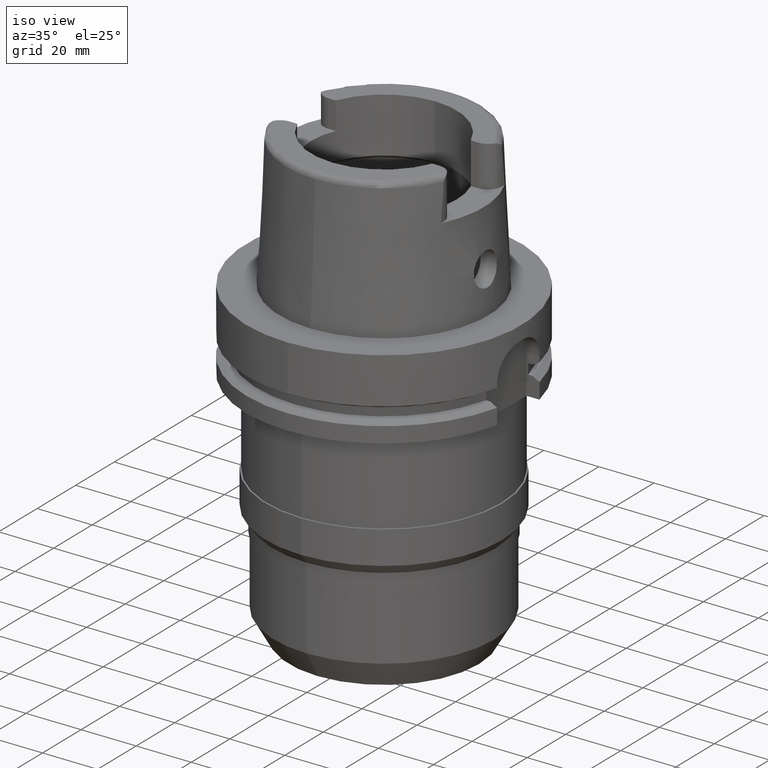
[diagram: clean part render]
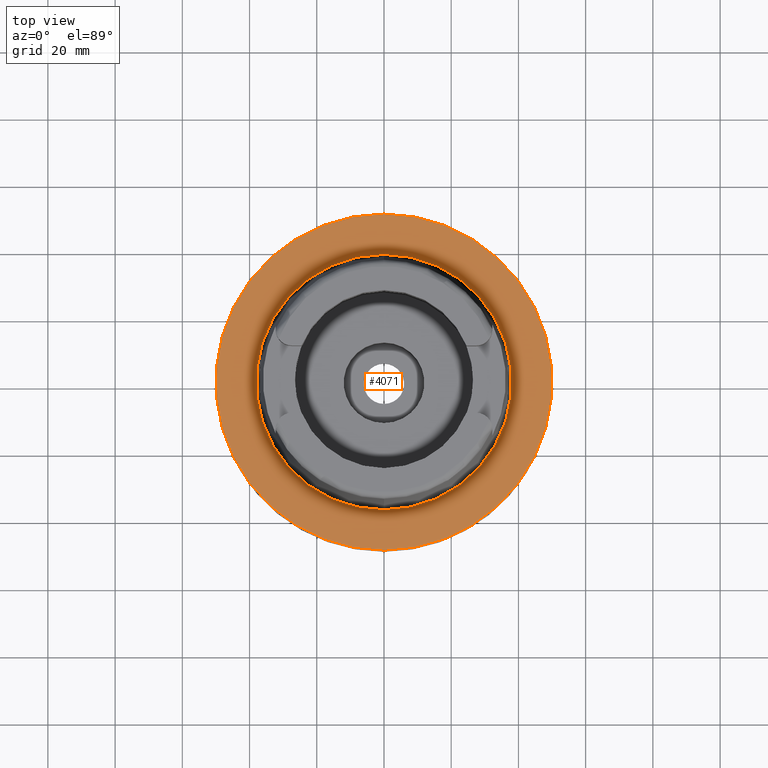
[diagram: tour spotlight — one face highlighted and labeled with its STEP entity id]
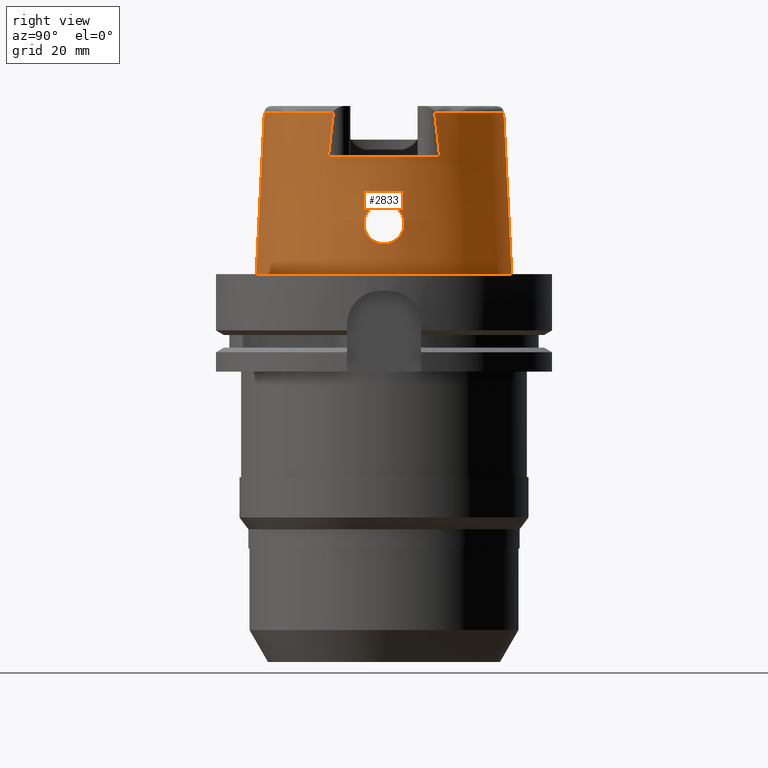
[diagram: tour spotlight — one face highlighted and labeled with its STEP entity id]
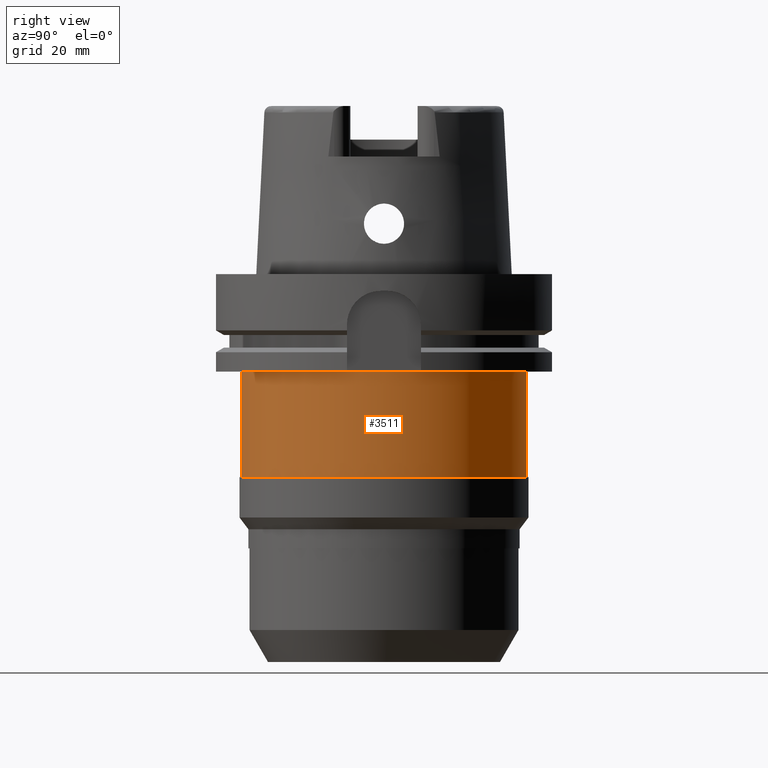
[diagram: tour spotlight — one face highlighted and labeled with its STEP entity id]
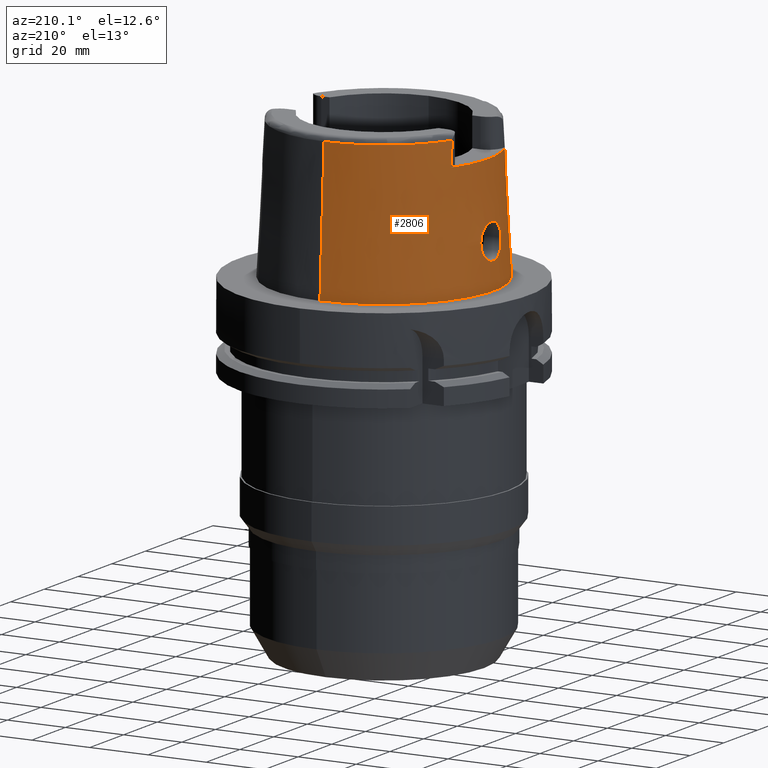
[diagram: tour spotlight — one face highlighted and labeled with its STEP entity id]
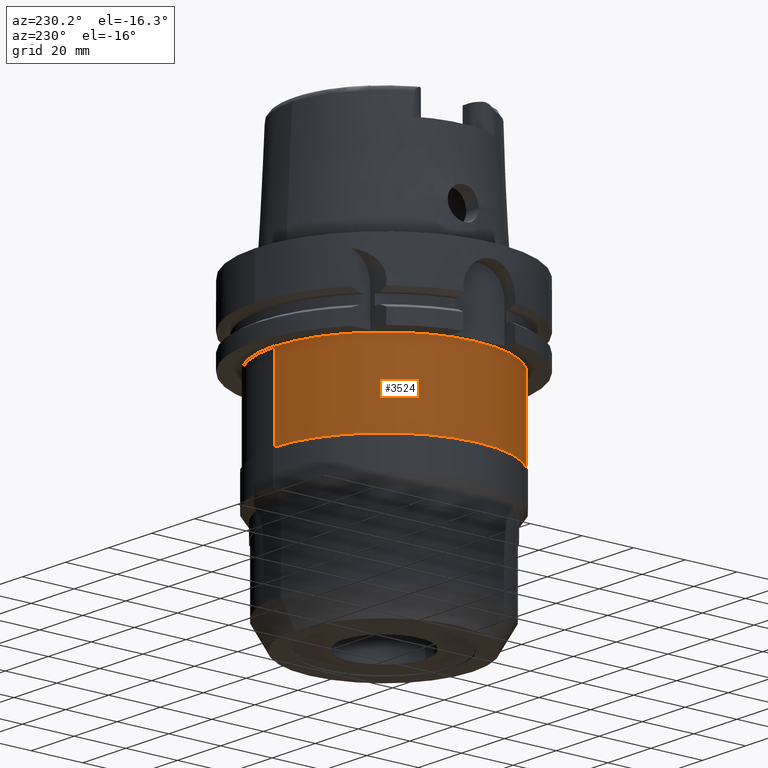
[diagram: tour spotlight — one face highlighted and labeled with its STEP entity id]
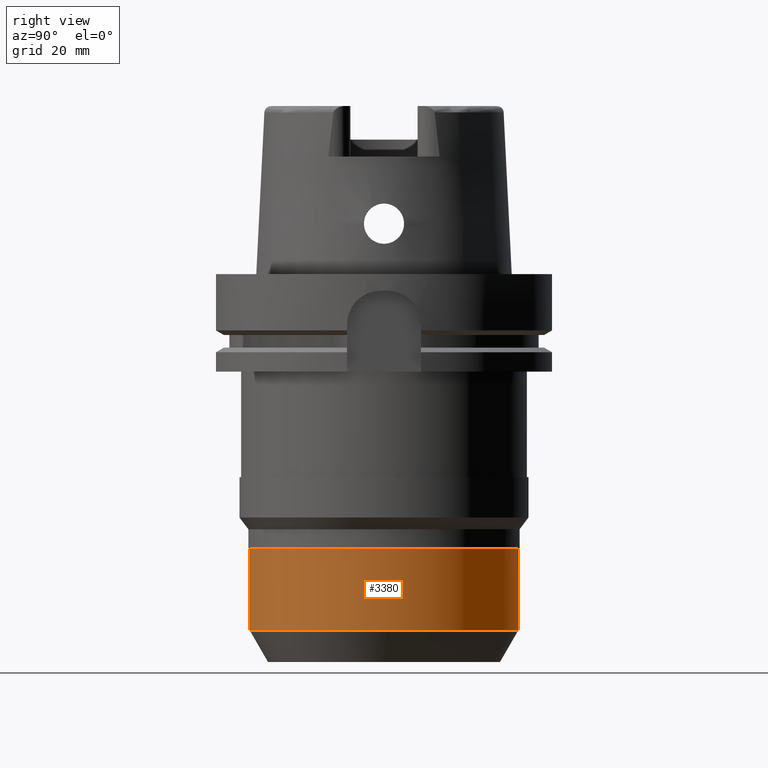
[diagram: tour spotlight — one face highlighted and labeled with its STEP entity id]
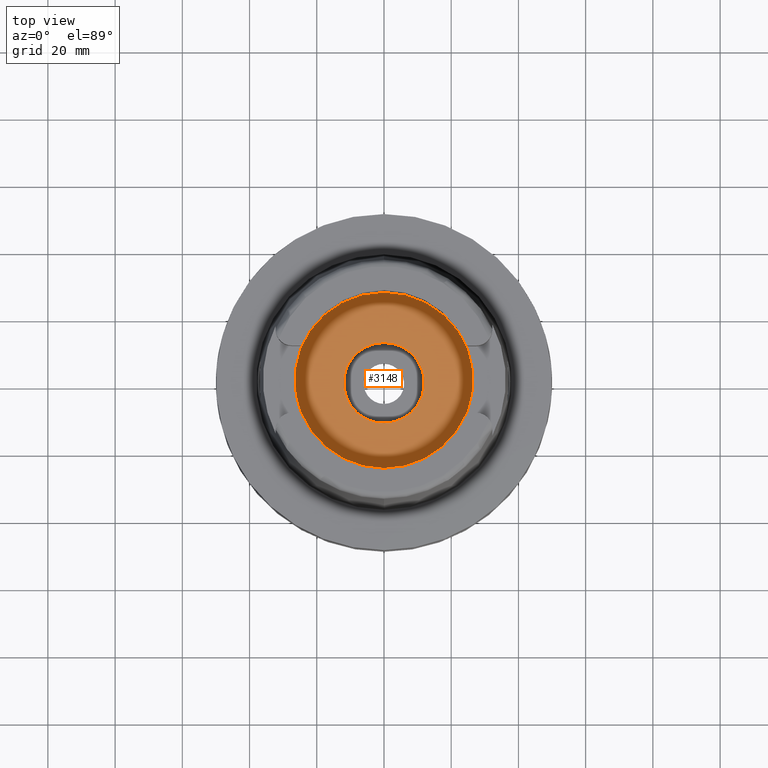
[diagram: tour spotlight — one face highlighted and labeled with its STEP entity id]
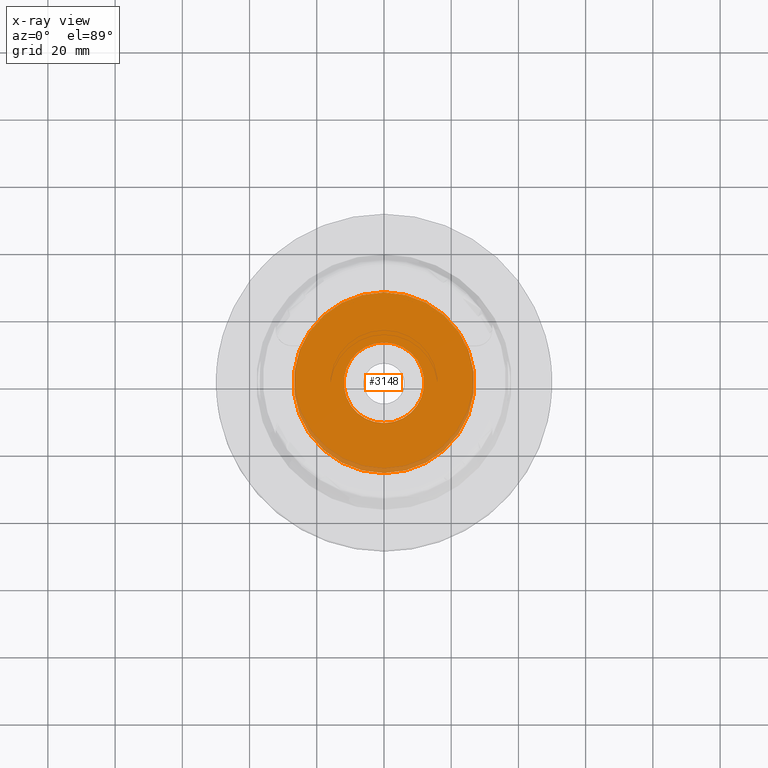
[diagram: x-ray of the same camera — body ghosted, this tour face saturated]
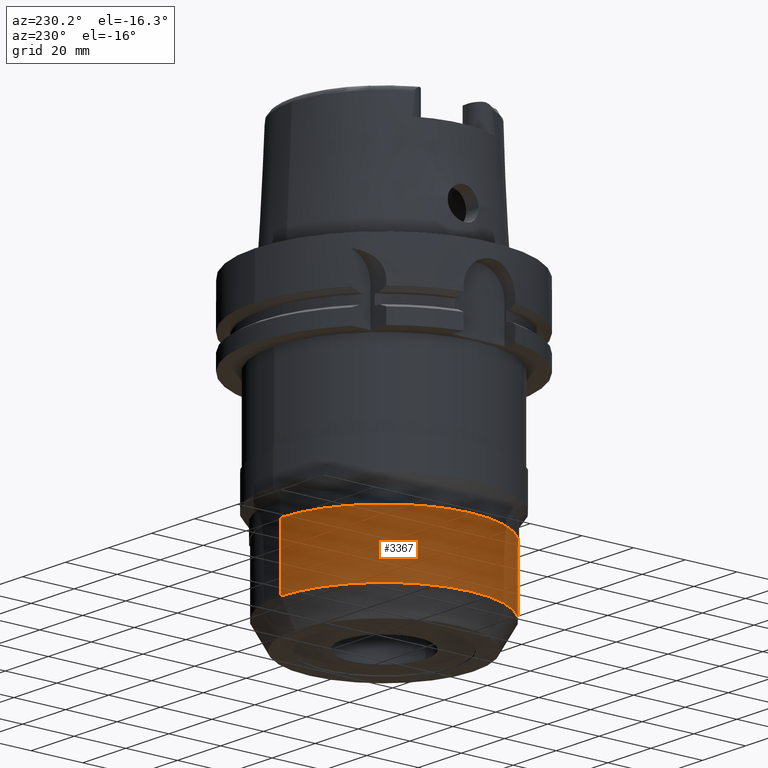
[diagram: tour spotlight — one face highlighted and labeled with its STEP entity id]
A machine part: a face-by-face anatomy tour. The part has 98 B-rep faces; the first image is the clean iso view, then the 8 largest visible faces are spotlighted one at a time (largest first), each with its STEP entity span.

Face 1 — top view, entity #4071. In plain terms, the highlighted planar face has unit normal (0, 0, 1).
Definition (entity closure, byte-faithful):
#2008=CARTESIAN_POINT('',(0.E0,0.E0,4.263256414561E-14));
#2009=DIRECTION('',(0.E0,0.E0,-1.E0));
#2010=DIRECTION('',(0.E0,-1.E0,0.E0));
#2011=AXIS2_PLACEMENT_3D('',#2008,#2009,#2010);
#2016=CARTESIAN_POINT('',(0.E0,0.E0,4.263256414561E-14));
#2017=DIRECTION('',(0.E0,0.E0,-1.E0));
#2018=DIRECTION('',(0.E0,1.E0,0.E0));
#2019=AXIS2_PLACEMENT_3D('',#2016,#2017,#2018);
#2024=CARTESIAN_POINT('',(0.E0,0.E0,1.023181539495E-12));
#2025=DIRECTION('',(0.E0,0.E0,1.E0));
#2026=DIRECTION('',(0.E0,-1.E0,0.E0));
#2027=AXIS2_PLACEMENT_3D('',#2024,#2025,#2026);
#2032=CARTESIAN_POINT('',(0.E0,0.E0,1.023181539495E-12));
#2033=DIRECTION('',(0.E0,0.E0,1.E0));
#2034=DIRECTION('',(0.E0,1.E0,0.E0));
#2035=AXIS2_PLACEMENT_3D('',#2032,#2033,#2034);
#2332=CARTESIAN_POINT('',(0.E0,-3.800001658252E1,6.892264536873E-13));
#2333=VERTEX_POINT('',#2332);
#2334=CARTESIAN_POINT('',(0.E0,3.800001658252E1,1.023181539495E-12));
#2335=VERTEX_POINT('',#2334);
#2581=CARTESIAN_POINT('',(0.E0,5.E1,3.315866100214E-14));
#2582=VERTEX_POINT('',#2581);
#2583=CARTESIAN_POINT('',(0.E0,-5.E1,4.263256414561E-14));
#2584=VERTEX_POINT('',#2583);
#4058=CARTESIAN_POINT('',(0.E0,0.E0,1.421085471520E-14));
#4059=DIRECTION('',(0.E0,0.E0,1.E0));
#4060=DIRECTION('',(0.E0,1.E0,0.E0));
#4061=AXIS2_PLACEMENT_3D('',#4058,#4059,#4060);
#4062=PLANE('',#4061);
#4063=ORIENTED_EDGE('',*,*,#3823,.T.);
#4064=ORIENTED_EDGE('',*,*,#3932,.T.);
#4065=EDGE_LOOP('',(#4063,#4064));
#4066=FACE_OUTER_BOUND('',#4065,.F.);
#4067=ORIENTED_EDGE('',*,*,#2819,.T.);
#4068=ORIENTED_EDGE('',*,*,#2790,.T.);
#4069=EDGE_LOOP('',(#4067,#4068));
#4070=FACE_BOUND('',#4069,.F.);
#2012=CIRCLE('',#2011,5.E1);
#2020=CIRCLE('',#2019,5.E1);
#2028=CIRCLE('',#2027,3.800001658252E1);
#2036=CIRCLE('',#2035,3.800001658252E1);
#2790=EDGE_CURVE('',#2335,#2333,#2036,.T.);
#2819=EDGE_CURVE('',#2333,#2335,#2028,.T.);
#3823=EDGE_CURVE('',#2584,#2582,#2012,.T.);
#3932=EDGE_CURVE('',#2582,#2584,#2020,.T.);
#4071=ADVANCED_FACE('',(#4066,#4070),#4062,.T.);

Face 2 — right view, entity #2833. In plain terms, the highlighted conical surface has half-angle 2.862 deg.
Definition (entity closure, byte-faithful):
#268=CARTESIAN_POINT('',(3.225000552017E1,-1.506439826501E1,4.810004190425E1));
#273=CARTESIAN_POINT('',(0.E0,0.E0,4.809987853799E1));
#274=DIRECTION('',(0.E0,0.E0,-1.E0));
#275=DIRECTION('',(9.060280460805E-1,-4.232176505246E-1,0.E0));
#276=AXIS2_PLACEMENT_3D('',#273,#274,#275);
#299=DIRECTION('',(5.154182075158E-5,-4.993927430816E-2,-9.987522546783E-1));
#300=VECTOR('',#299,4.815996991514E1);
#301=CARTESIAN_POINT('',(-2.482252536765E-3,-3.559494263425E1,
4.809987853799E1));
#302=LINE('',#301,#300);
#316=CARTESIAN_POINT('',(3.224999527489E1,1.655287543599E1,3.5E1));
#317=CARTESIAN_POINT('',(3.224999527489E1,1.639226210430E1,3.646677430492E1));
#318=CARTESIAN_POINT('',(3.224999958003E1,1.606837254247E1,3.939292746717E1));
#319=CARTESIAN_POINT('',(3.225000855756E1,1.557203233777E1,4.375938234040E1));
#320=CARTESIAN_POINT('',(3.224998031234E1,1.523513262342E1,4.665592280513E1));
#321=CARTESIAN_POINT('',(3.224998031234E1,1.506460276899E1,4.809931533384E1));
#326=DIRECTION('',(-5.154182075169E-5,4.993927430816E-2,-9.987522546783E-1));
#327=VECTOR('',#326,4.815996991514E1);
#328=CARTESIAN_POINT('',(2.482252536770E-3,3.559494263425E1,4.809987853799E1));
#329=LINE('',#328,#327);
#333=CARTESIAN_POINT('',(3.225000552017E1,-1.506439826501E1,4.810004190425E1));
#334=CARTESIAN_POINT('',(3.225000552017E1,-1.523503290059E1,4.665577801195E1));
#335=CARTESIAN_POINT('',(3.225000026293E1,-1.557219472477E1,4.376011581998E1));
#336=CARTESIAN_POINT('',(3.224999079948E1,-1.606856473650E1,3.939344259603E1));
#337=CARTESIAN_POINT('',(3.225002129259E1,-1.639212166417E1,3.646699412941E1));
#338=CARTESIAN_POINT('',(3.225002129259E1,-1.655276054267E1,3.5E1));
#373=CARTESIAN_POINT('',(0.E0,0.E0,3.5E1));
#374=DIRECTION('',(0.E0,0.E0,-1.E0));
#375=DIRECTION('',(8.896561898443E-1,4.566309931135E-1,0.E0));
#376=AXIS2_PLACEMENT_3D('',#373,#374,#375);
#707=CARTESIAN_POINT('',(3.755000165825E1,0.E0,9.E0));
#708=CARTESIAN_POINT('',(3.755000165825E1,-4.773592235094E-1,9.E0));
#709=CARTESIAN_POINT('',(3.752565337436E1,-1.433099173646E0,9.114921756617E0));
#710=CARTESIAN_POINT('',(3.742315494575E1,-2.782850880359E0,9.619219610297E0));
#711=CARTESIAN_POINT('',(3.727071767394E1,-3.988440755479E0,1.043946408865E1));
#712=CARTESIAN_POINT('',(3.709625341361E1,-4.964269789544E0,1.152554201715E1));
#713=CARTESIAN_POINT('',(3.692909709420E1,-5.656858353743E0,1.282805818516E1));
#714=CARTESIAN_POINT('',(3.679986315860E1,-6.011905422053E0,1.424721508842E1));
#715=CARTESIAN_POINT('',(3.672488356595E1,-6.016635739664E0,1.571073450279E1));
#716=CARTESIAN_POINT('',(3.670898370976E1,-5.674158647385E0,1.712305122667E1));
#717=CARTESIAN_POINT('',(3.674311705262E1,-5.002333790833E0,1.841680856030E1));
#718=CARTESIAN_POINT('',(3.680805571653E1,-4.047306589048E0,1.950945609671E1));
#719=CARTESIAN_POINT('',(3.688148534354E1,-2.828211917315E0,2.036048498988E1));
#720=CARTESIAN_POINT('',(3.693660867156E1,-1.449053320778E0,2.088334189719E1));
#721=CARTESIAN_POINT('',(3.694998175923E1,-4.816373908015E-1,2.1E1));
#722=CARTESIAN_POINT('',(3.694998175923E1,-1.503990973345E-13,2.1E1));
#759=CARTESIAN_POINT('',(3.694998175923E1,-1.503990973345E-13,2.1E1));
#760=CARTESIAN_POINT('',(3.694998175923E1,4.801632820867E-1,2.1E1));
#761=CARTESIAN_POINT('',(3.693668381045E1,1.444070792469E0,2.088395531907E1));
#762=CARTESIAN_POINT('',(3.688206924049E1,2.815923702495E0,2.036620137876E1));
#763=CARTESIAN_POINT('',(3.680907689534E1,4.031984769960E0,1.952255475640E1));
#764=CARTESIAN_POINT('',(3.674396040576E1,4.989345480553E0,1.843598637237E1));
#765=CARTESIAN_POINT('',(3.670903677869E1,5.668627654159E0,1.713946386642E1));
#766=CARTESIAN_POINT('',(3.672451350694E1,6.014547962832E0,1.572484913116E1));
#767=CARTESIAN_POINT('',(3.679816946571E1,6.013901442255E0,1.427401175353E1));
#768=CARTESIAN_POINT('',(3.692490634374E1,5.670717502965E0,1.286747731986E1));
#769=CARTESIAN_POINT('',(3.709021432016E1,4.992870852891E0,1.156718613804E1));
#770=CARTESIAN_POINT('',(3.726544937434E1,4.023605610903E0,1.046917288064E1));
#771=CARTESIAN_POINT('',(3.742086540104E1,2.808604125009E0,9.630556673659E0));
#772=CARTESIAN_POINT('',(3.752558559911E1,1.439608206990E0,9.115197630954E0));
#773=CARTESIAN_POINT('',(3.755000165825E1,4.785901561068E-1,9.E0));
#774=CARTESIAN_POINT('',(3.755000165825E1,0.E0,9.E0));
#2024=CARTESIAN_POINT('',(0.E0,0.E0,1.023181539495E-12));
#2025=DIRECTION('',(0.E0,0.E0,1.E0));
#2026=DIRECTION('',(0.E0,-1.E0,0.E0));
#2027=AXIS2_PLACEMENT_3D('',#2024,#2025,#2026);
#2236=CARTESIAN_POINT('',(0.E0,0.E0,4.809987853799E1));
#2237=DIRECTION('',(0.E0,0.E0,-1.E0));
#2238=DIRECTION('',(0.E0,1.E0,0.E0));
#2239=AXIS2_PLACEMENT_3D('',#2236,#2237,#2238);
#2322=CARTESIAN_POINT('',(0.E0,3.559494289391E1,4.809987853799E1));
#2323=VERTEX_POINT('',#2322);
#2324=CARTESIAN_POINT('',(3.224994093704E1,1.506456999646E1,4.809987853799E1));
#2325=VERTEX_POINT('',#2324);
#2329=VERTEX_POINT('',#268);
#2330=CARTESIAN_POINT('',(1.065814103640E-14,-3.559494289391E1,
4.809987853799E1));
#2331=VERTEX_POINT('',#2330);
#2332=CARTESIAN_POINT('',(0.E0,-3.800001658252E1,6.892264536873E-13));
#2333=VERTEX_POINT('',#2332);
#2334=CARTESIAN_POINT('',(0.E0,3.800001658252E1,1.023181539495E-12));
#2335=VERTEX_POINT('',#2334);
#2338=CARTESIAN_POINT('',(3.225E1,1.655285457013E1,3.5E1));
#2339=CARTESIAN_POINT('',(3.225E1,-1.655285457013E1,3.5E1));
#2340=VERTEX_POINT('',#2338);
#2341=VERTEX_POINT('',#2339);
#2342=VERTEX_POINT('',#707);
#2343=VERTEX_POINT('',#722);
#2807=CARTESIAN_POINT('',(0.E0,0.E0,2.404993926900E1));
#2808=DIRECTION('',(0.E0,0.E0,-1.E0));
#2809=DIRECTION('',(0.E0,-1.E0,0.E0));
#2810=AXIS2_PLACEMENT_3D('',#2807,#2808,#2809);
#2811=CONICAL_SURFACE('',#2810,3.679747973821E1,2.8625E0);
#2813=ORIENTED_EDGE('',*,*,#2812,.F.);
#2815=ORIENTED_EDGE('',*,*,#2814,.T.);
#2817=ORIENTED_EDGE('',*,*,#2816,.F.);
#2818=ORIENTED_EDGE('',*,*,#2792,.T.);
#2820=ORIENTED_EDGE('',*,*,#2819,.F.);
#2821=ORIENTED_EDGE('',*,*,#2788,.F.);
#2822=ORIENTED_EDGE('',*,*,#2760,.F.);
#2824=ORIENTED_EDGE('',*,*,#2823,.T.);
#2825=EDGE_LOOP('',(#2813,#2815,#2817,#2818,#2820,#2821,#2822,#2824));
#2826=FACE_OUTER_BOUND('',#2825,.F.);
#2828=ORIENTED_EDGE('',*,*,#2827,.F.);
#2830=ORIENTED_EDGE('',*,*,#2829,.F.);
#2831=EDGE_LOOP('',(#2828,#2830));
#2832=FACE_BOUND('',#2831,.F.);
#277=CIRCLE('',#276,3.559494289391E1);
#322=B_SPLINE_CURVE_WITH_KNOTS('',3,(#316,#317,#318,#319,#320,#321),
.UNSPECIFIED.,.F.,.F.,(4,1,1,4),(0.E0,3.333333333333E-1,6.666666666667E-1,1.E0),
.UNSPECIFIED.);
#339=B_SPLINE_CURVE_WITH_KNOTS('',3,(#333,#334,#335,#336,#337,#338),
.UNSPECIFIED.,.F.,.F.,(4,1,1,4),(0.E0,3.333333333333E-1,6.666666666667E-1,1.E0),
.UNSPECIFIED.);
#377=CIRCLE('',#376,3.624995854370E1);
#723=B_SPLINE_CURVE_WITH_KNOTS('',3,(#707,#708,#709,#710,#711,#712,#713,#714,
#715,#716,#717,#718,#719,#720,#721,#722),.UNSPECIFIED.,.F.,.F.,(4,1,1,1,1,1,1,1,
1,1,1,1,1,4),(0.E0,7.692307692308E-2,1.538461538462E-1,2.307692307692E-1,
3.076923076923E-1,3.846153846154E-1,4.615384615385E-1,5.384615384615E-1,
6.153846153846E-1,6.923076923077E-1,7.692307692308E-1,8.461538461538E-1,
9.230769230769E-1,1.E0),.UNSPECIFIED.);
#775=B_SPLINE_CURVE_WITH_KNOTS('',3,(#759,#760,#761,#762,#763,#764,#765,#766,
#767,#768,#769,#770,#771,#772,#773,#774),.UNSPECIFIED.,.F.,.F.,(4,1,1,1,1,1,1,1,
1,1,1,1,1,4),(0.E0,7.692307692308E-2,1.538461538462E-1,2.307692307692E-1,
3.076923076923E-1,3.846153846154E-1,4.615384615385E-1,5.384615384615E-1,
6.153846153846E-1,6.923076923077E-1,7.692307692308E-1,8.461538461538E-1,
9.230769230769E-1,1.E0),.UNSPECIFIED.);
#2028=CIRCLE('',#2027,3.800001658252E1);
#2240=CIRCLE('',#2239,3.559494289391E1);
#2760=EDGE_CURVE('',#2329,#2331,#277,.T.);
#2788=EDGE_CURVE('',#2331,#2333,#302,.T.);
#2792=EDGE_CURVE('',#2323,#2335,#329,.T.);
#2812=EDGE_CURVE('',#2340,#2341,#377,.T.);
#2814=EDGE_CURVE('',#2340,#2325,#322,.T.);
#2816=EDGE_CURVE('',#2323,#2325,#2240,.T.);
#2819=EDGE_CURVE('',#2333,#2335,#2028,.T.);
#2823=EDGE_CURVE('',#2329,#2341,#339,.T.);
#2827=EDGE_CURVE('',#2342,#2343,#723,.T.);
#2829=EDGE_CURVE('',#2343,#2342,#775,.T.);
#2833=ADVANCED_FACE('',(#2826,#2832),#2811,.T.);

Face 3 — right view, entity #3511. In plain terms, the highlighted cylindrical surface (partial cylindrical patch) has radius 42.5 mm, axis along (0, 0, 1).
Definition (entity closure, byte-faithful):
#1215=CARTESIAN_POINT('',(0.E0,0.E0,-6.04E1));
#1216=DIRECTION('',(0.E0,0.E0,1.E0));
#1217=DIRECTION('',(0.E0,-1.E0,0.E0));
#1218=AXIS2_PLACEMENT_3D('',#1215,#1216,#1217);
#1231=DIRECTION('',(0.E0,0.E0,-1.E0));
#1232=VECTOR('',#1231,3.14E1);
#1233=CARTESIAN_POINT('',(0.E0,4.25E1,-2.9E1));
#1234=LINE('',#1233,#1232);
#1238=DIRECTION('',(0.E0,0.E0,-1.E0));
#1239=VECTOR('',#1238,3.14E1);
#1240=CARTESIAN_POINT('',(0.E0,-4.25E1,-2.9E1));
#1241=LINE('',#1240,#1239);
#1314=CARTESIAN_POINT('',(0.E0,0.E0,-2.9E1));
#1315=DIRECTION('',(0.E0,0.E0,-1.E0));
#1316=DIRECTION('',(0.E0,1.E0,0.E0));
#1317=AXIS2_PLACEMENT_3D('',#1314,#1315,#1316);
#2446=CARTESIAN_POINT('',(0.E0,-4.25E1,-6.04E1));
#2447=CARTESIAN_POINT('',(0.E0,4.25E1,-6.04E1));
#2448=VERTEX_POINT('',#2446);
#2449=VERTEX_POINT('',#2447);
#2450=CARTESIAN_POINT('',(0.E0,4.25E1,-2.9E1));
#2451=VERTEX_POINT('',#2450);
#2452=CARTESIAN_POINT('',(0.E0,-4.25E1,-2.9E1));
#2453=VERTEX_POINT('',#2452);
#3497=CARTESIAN_POINT('',(0.E0,0.E0,-1.2367E2));
#3498=DIRECTION('',(0.E0,0.E0,1.E0));
#3499=DIRECTION('',(0.E0,1.E0,0.E0));
#3500=AXIS2_PLACEMENT_3D('',#3497,#3498,#3499);
#3501=CYLINDRICAL_SURFACE('',#3500,4.25E1);
#3503=ORIENTED_EDGE('',*,*,#3502,.T.);
#3504=ORIENTED_EDGE('',*,*,#3490,.F.);
#3506=ORIENTED_EDGE('',*,*,#3505,.F.);
#3508=ORIENTED_EDGE('',*,*,#3507,.F.);
#3509=EDGE_LOOP('',(#3503,#3504,#3506,#3508));
#3510=FACE_OUTER_BOUND('',#3509,.F.);
#1219=CIRCLE('',#1218,4.25E1);
#1318=CIRCLE('',#1317,4.25E1);
#3490=EDGE_CURVE('',#2448,#2449,#1219,.T.);
#3502=EDGE_CURVE('',#2451,#2449,#1234,.T.);
#3505=EDGE_CURVE('',#2453,#2448,#1241,.T.);
#3507=EDGE_CURVE('',#2451,#2453,#1318,.T.);
#3511=ADVANCED_FACE('',(#3510),#3501,.T.);

Face 4 — auxiliary view, entity #2806. In plain terms, the highlighted conical surface has half-angle 2.862 deg.
Definition (entity closure, byte-faithful):
#130=CARTESIAN_POINT('',(0.E0,0.E0,4.E1));
#131=DIRECTION('',(0.E0,0.E0,-1.E0));
#132=DIRECTION('',(-8.958345712660E-1,-4.443876921391E-1,0.E0));
#133=AXIS2_PLACEMENT_3D('',#130,#131,#132);
#221=CARTESIAN_POINT('',(-3.224999491821E1,-1.506448486561E1,4.809973213298E1));
#281=CARTESIAN_POINT('',(0.E0,0.E0,4.809987853799E1));
#282=DIRECTION('',(0.E0,0.E0,-1.E0));
#283=DIRECTION('',(0.E0,-1.E0,0.E0));
#284=AXIS2_PLACEMENT_3D('',#281,#282,#283);
#289=CARTESIAN_POINT('',(-3.224999876012E1,-1.599794043148E1,4.E1));
#290=CARTESIAN_POINT('',(-3.224999876012E1,-1.589618560063E1,4.090434232027E1));
#291=CARTESIAN_POINT('',(-3.224999990104E1,-1.569149929078E1,4.271014760519E1));
#292=CARTESIAN_POINT('',(-3.225000220619E1,-1.538028255872E1,4.541006258455E1));
#293=CARTESIAN_POINT('',(-3.224999491821E1,-1.517027178491E1,4.720433995261E1));
#294=CARTESIAN_POINT('',(-3.224999491821E1,-1.506448486561E1,4.809973213298E1));
#299=DIRECTION('',(5.154182075158E-5,-4.993927430816E-2,-9.987522546783E-1));
#300=VECTOR('',#299,4.815996991514E1);
#301=CARTESIAN_POINT('',(-2.482252536765E-3,-3.559494263425E1,
4.809987853799E1));
#302=LINE('',#301,#300);
#306=CARTESIAN_POINT('',(-3.225000136841E1,1.506443227166E1,4.809991930989E1));
#307=CARTESIAN_POINT('',(-3.225000136841E1,1.517024629445E1,4.720430018542E1));
#308=CARTESIAN_POINT('',(-3.225000007421E1,1.538032523400E1,4.541024586125E1));
#309=CARTESIAN_POINT('',(-3.224999768767E1,1.569154926969E1,4.271027466281E1));
#310=CARTESIAN_POINT('',(-3.225000534596E1,1.589614940559E1,4.090439636549E1));
#311=CARTESIAN_POINT('',(-3.225000534596E1,1.599791057085E1,4.E1));
#326=DIRECTION('',(-5.154182075169E-5,4.993927430816E-2,-9.987522546783E-1));
#327=VECTOR('',#326,4.815996991514E1);
#328=CARTESIAN_POINT('',(2.482252536770E-3,3.559494263425E1,4.809987853799E1));
#329=LINE('',#328,#327);
#516=CARTESIAN_POINT('',(-3.694998175923E1,0.E0,2.1E1));
#517=CARTESIAN_POINT('',(-3.694998175923E1,-4.801683863024E-1,2.1E1));
#518=CARTESIAN_POINT('',(-3.693668340598E1,-1.444082289584E0,2.088395128015E1));
#519=CARTESIAN_POINT('',(-3.688206963934E1,-2.815914837114E0,2.036620592424E1));
#520=CARTESIAN_POINT('',(-3.680907669962E1,-4.031988394168E0,1.952255129666E1));
#521=CARTESIAN_POINT('',(-3.674396119534E1,-4.989333495116E0,1.843600132066E1));
#522=CARTESIAN_POINT('',(-3.670903679845E1,-5.668623170392E0,1.713947846056E1));
#523=CARTESIAN_POINT('',(-3.672451323062E1,-6.014546712266E0,1.572485834531E1));
#524=CARTESIAN_POINT('',(-3.679816845361E1,-6.013902823971E0,1.427402746265E1));
#525=CARTESIAN_POINT('',(-3.692490426149E1,-5.670724256779E0,1.286749670343E1));
#526=CARTESIAN_POINT('',(-3.709021199359E1,-4.992883201315E0,1.156720107620E1));
#527=CARTESIAN_POINT('',(-3.726545076207E1,-4.023597843595E0,1.046916411799E1));
#528=CARTESIAN_POINT('',(-3.742086666610E1,-2.808593144190E0,9.630550426520E0));
#529=CARTESIAN_POINT('',(-3.752558683028E1,-1.439583936875E0,9.115191613429E0));
#530=CARTESIAN_POINT('',(-3.755000165825E1,-4.785797836271E-1,9.E0));
#531=CARTESIAN_POINT('',(-3.755000165825E1,1.571614468377E-13,9.E0));
#581=CARTESIAN_POINT('',(-3.755000165825E1,1.571614468377E-13,9.E0));
#582=CARTESIAN_POINT('',(-3.755000165825E1,4.773667856505E-1,9.E0));
#583=CARTESIAN_POINT('',(-3.752565242206E1,1.433115816981E0,9.114926460523E0));
#584=CARTESIAN_POINT('',(-3.742315492220E1,2.782849063357E0,9.619219645688E0));
#585=CARTESIAN_POINT('',(-3.727071807226E1,3.988437435202E0,1.043946237840E1));
#586=CARTESIAN_POINT('',(-3.709625643923E1,4.964254290011E0,1.152552206039E1));
#587=CARTESIAN_POINT('',(-3.692910002812E1,5.656848246304E0,1.282803186015E1));
#588=CARTESIAN_POINT('',(-3.679986536795E1,6.011901416746E0,1.424718440227E1));
#589=CARTESIAN_POINT('',(-3.672488456629E1,6.016639302658E0,1.571070334165E1));
#590=CARTESIAN_POINT('',(-3.670898348333E1,5.674170721329E0,1.712301714377E1));
#591=CARTESIAN_POINT('',(-3.674311564952E1,5.002354935268E0,1.841678101202E1));
#592=CARTESIAN_POINT('',(-3.680805547959E1,4.047309639453E0,1.950945434928E1));
#593=CARTESIAN_POINT('',(-3.688148486968E1,2.828222904769E0,2.036047981589E1));
#594=CARTESIAN_POINT('',(-3.693660914126E1,1.449040062385E0,2.088334652440E1));
#595=CARTESIAN_POINT('',(-3.694998175923E1,4.816312177031E-1,2.1E1));
#596=CARTESIAN_POINT('',(-3.694998175923E1,0.E0,2.1E1));
#2032=CARTESIAN_POINT('',(0.E0,0.E0,1.023181539495E-12));
#2033=DIRECTION('',(0.E0,0.E0,1.E0));
#2034=DIRECTION('',(0.E0,1.E0,0.E0));
#2035=AXIS2_PLACEMENT_3D('',#2032,#2033,#2034);
#2223=CARTESIAN_POINT('',(-3.225000136841E1,1.506443227166E1,4.809991930989E1));
#2228=CARTESIAN_POINT('',(0.E0,0.E0,4.809987853799E1));
#2229=DIRECTION('',(0.E0,0.E0,-1.E0));
#2230=DIRECTION('',(-9.060276961631E-1,4.232183996300E-1,0.E0));
#2231=AXIS2_PLACEMENT_3D('',#2228,#2229,#2230);
#2316=CARTESIAN_POINT('',(-3.224999876012E1,-1.599794043148E1,4.E1));
#2317=VERTEX_POINT('',#2316);
#2318=CARTESIAN_POINT('',(-3.224999999999E1,1.599793480981E1,4.E1));
#2319=VERTEX_POINT('',#2318);
#2321=VERTEX_POINT('',#2223);
#2322=CARTESIAN_POINT('',(0.E0,3.559494289391E1,4.809987853799E1));
#2323=VERTEX_POINT('',#2322);
#2327=VERTEX_POINT('',#221);
#2330=CARTESIAN_POINT('',(1.065814103640E-14,-3.559494289391E1,
4.809987853799E1));
#2331=VERTEX_POINT('',#2330);
#2332=CARTESIAN_POINT('',(0.E0,-3.800001658252E1,6.892264536873E-13));
#2333=VERTEX_POINT('',#2332);
#2334=CARTESIAN_POINT('',(0.E0,3.800001658252E1,1.023181539495E-12));
#2335=VERTEX_POINT('',#2334);
#2336=VERTEX_POINT('',#516);
#2337=VERTEX_POINT('',#531);
#2780=CARTESIAN_POINT('',(0.E0,0.E0,2.404993926900E1));
#2781=DIRECTION('',(0.E0,0.E0,-1.E0));
#2782=DIRECTION('',(0.E0,-1.E0,0.E0));
#2783=AXIS2_PLACEMENT_3D('',#2780,#2781,#2782);
#2784=CONICAL_SURFACE('',#2783,3.679747973821E1,2.8625E0);
#2785=ORIENTED_EDGE('',*,*,#2689,.F.);
#2786=ORIENTED_EDGE('',*,*,#2772,.T.);
#2787=ORIENTED_EDGE('',*,*,#2762,.F.);
#2789=ORIENTED_EDGE('',*,*,#2788,.T.);
#2791=ORIENTED_EDGE('',*,*,#2790,.F.);
#2793=ORIENTED_EDGE('',*,*,#2792,.F.);
#2795=ORIENTED_EDGE('',*,*,#2794,.F.);
#2797=ORIENTED_EDGE('',*,*,#2796,.T.);
#2798=EDGE_LOOP('',(#2785,#2786,#2787,#2789,#2791,#2793,#2795,#2797));
#2799=FACE_OUTER_BOUND('',#2798,.F.);
#2801=ORIENTED_EDGE('',*,*,#2800,.F.);
#2803=ORIENTED_EDGE('',*,*,#2802,.F.);
#2804=EDGE_LOOP('',(#2801,#2803));
#2805=FACE_BOUND('',#2804,.F.);
#134=CIRCLE('',#133,3.599995025244E1);
#285=CIRCLE('',#284,3.559494289391E1);
#295=B_SPLINE_CURVE_WITH_KNOTS('',3,(#289,#290,#291,#292,#293,#294),
.UNSPECIFIED.,.F.,.F.,(4,1,1,4),(0.E0,3.333333333333E-1,6.666666666667E-1,1.E0),
.UNSPECIFIED.);
#312=B_SPLINE_CURVE_WITH_KNOTS('',3,(#306,#307,#308,#309,#310,#311),
.UNSPECIFIED.,.F.,.F.,(4,1,1,4),(0.E0,3.333333333333E-1,6.666666666667E-1,1.E0),
.UNSPECIFIED.);
#532=B_SPLINE_CURVE_WITH_KNOTS('',3,(#516,#517,#518,#519,#520,#521,#522,#523,
#524,#525,#526,#527,#528,#529,#530,#531),.UNSPECIFIED.,.F.,.F.,(4,1,1,1,1,1,1,1,
1,1,1,1,1,4),(0.E0,7.692307692308E-2,1.538461538462E-1,2.307692307692E-1,
3.076923076923E-1,3.846153846154E-1,4.615384615385E-1,5.384615384615E-1,
6.153846153846E-1,6.923076923077E-1,7.692307692308E-1,8.461538461538E-1,
9.230769230769E-1,1.E0),.UNSPECIFIED.);
#597=B_SPLINE_CURVE_WITH_KNOTS('',3,(#581,#582,#583,#584,#585,#586,#587,#588,
#589,#590,#591,#592,#593,#594,#595,#596),.UNSPECIFIED.,.F.,.F.,(4,1,1,1,1,1,1,1,
1,1,1,1,1,4),(0.E0,7.692307692308E-2,1.538461538462E-1,2.307692307692E-1,
3.076923076923E-1,3.846153846154E-1,4.615384615385E-1,5.384615384615E-1,
6.153846153846E-1,6.923076923077E-1,7.692307692308E-1,8.461538461538E-1,
9.230769230769E-1,1.E0),.UNSPECIFIED.);
#2036=CIRCLE('',#2035,3.800001658252E1);
#2232=CIRCLE('',#2231,3.559494289391E1);
#2689=EDGE_CURVE('',#2317,#2319,#134,.T.);
#2762=EDGE_CURVE('',#2331,#2327,#285,.T.);
#2772=EDGE_CURVE('',#2317,#2327,#295,.T.);
#2788=EDGE_CURVE('',#2331,#2333,#302,.T.);
#2790=EDGE_CURVE('',#2335,#2333,#2036,.T.);
#2792=EDGE_CURVE('',#2323,#2335,#329,.T.);
#2794=EDGE_CURVE('',#2321,#2323,#2232,.T.);
#2796=EDGE_CURVE('',#2321,#2319,#312,.T.);
#2800=EDGE_CURVE('',#2336,#2337,#532,.T.);
#2802=EDGE_CURVE('',#2337,#2336,#597,.T.);
#2806=ADVANCED_FACE('',(#2799,#2805),#2784,.T.);

Face 5 — auxiliary view, entity #3524. In plain terms, the highlighted cylindrical surface (partial cylindrical patch) has radius 42.5 mm, axis along (0, 0, 1).
Definition (entity closure, byte-faithful):
#1223=CARTESIAN_POINT('',(0.E0,0.E0,-6.04E1));
#1224=DIRECTION('',(0.E0,0.E0,1.E0));
#1225=DIRECTION('',(0.E0,1.E0,0.E0));
#1226=AXIS2_PLACEMENT_3D('',#1223,#1224,#1225);
#1231=DIRECTION('',(0.E0,0.E0,-1.E0));
#1232=VECTOR('',#1231,3.14E1);
#1233=CARTESIAN_POINT('',(0.E0,4.25E1,-2.9E1));
#1234=LINE('',#1233,#1232);
#1238=DIRECTION('',(0.E0,0.E0,-1.E0));
#1239=VECTOR('',#1238,3.14E1);
#1240=CARTESIAN_POINT('',(0.E0,-4.25E1,-2.9E1));
#1241=LINE('',#1240,#1239);
#1306=CARTESIAN_POINT('',(0.E0,0.E0,-2.9E1));
#1307=DIRECTION('',(0.E0,0.E0,-1.E0));
#1308=DIRECTION('',(0.E0,-1.E0,0.E0));
#1309=AXIS2_PLACEMENT_3D('',#1306,#1307,#1308);
#2446=CARTESIAN_POINT('',(0.E0,-4.25E1,-6.04E1));
#2447=CARTESIAN_POINT('',(0.E0,4.25E1,-6.04E1));
#2448=VERTEX_POINT('',#2446);
#2449=VERTEX_POINT('',#2447);
#2450=CARTESIAN_POINT('',(0.E0,4.25E1,-2.9E1));
#2451=VERTEX_POINT('',#2450);
#2452=CARTESIAN_POINT('',(0.E0,-4.25E1,-2.9E1));
#2453=VERTEX_POINT('',#2452);
#3512=CARTESIAN_POINT('',(0.E0,0.E0,-1.2367E2));
#3513=DIRECTION('',(0.E0,0.E0,1.E0));
#3514=DIRECTION('',(0.E0,1.E0,0.E0));
#3515=AXIS2_PLACEMENT_3D('',#3512,#3513,#3514);
#3516=CYLINDRICAL_SURFACE('',#3515,4.25E1);
#3517=ORIENTED_EDGE('',*,*,#3502,.F.);
#3519=ORIENTED_EDGE('',*,*,#3518,.F.);
#3520=ORIENTED_EDGE('',*,*,#3505,.T.);
#3521=ORIENTED_EDGE('',*,*,#3492,.F.);
#3522=EDGE_LOOP('',(#3517,#3519,#3520,#3521));
#3523=FACE_OUTER_BOUND('',#3522,.F.);
#1227=CIRCLE('',#1226,4.25E1);
#1310=CIRCLE('',#1309,4.25E1);
#3492=EDGE_CURVE('',#2449,#2448,#1227,.T.);
#3502=EDGE_CURVE('',#2451,#2449,#1234,.T.);
#3505=EDGE_CURVE('',#2453,#2448,#1241,.T.);
#3518=EDGE_CURVE('',#2453,#2451,#1310,.T.);
#3524=ADVANCED_FACE('',(#3523),#3516,.T.);

Face 6 — right view, entity #3380. In plain terms, the highlighted cylindrical surface (partial cylindrical patch) has radius 40 mm, axis along (0, 0, 1).
Definition (entity closure, byte-faithful):
#1056=CARTESIAN_POINT('',(0.E0,0.E0,-1.059E2));
#1057=DIRECTION('',(0.E0,0.E0,1.E0));
#1058=DIRECTION('',(0.E0,-1.E0,0.E0));
#1059=AXIS2_PLACEMENT_3D('',#1056,#1057,#1058);
#1079=DIRECTION('',(0.E0,-1.052655904830E-14,-1.E0));
#1080=VECTOR('',#1079,2.43E1);
#1081=CARTESIAN_POINT('',(0.E0,-4.E1,-8.16E1));
#1082=LINE('',#1081,#1080);
#1086=DIRECTION('',(0.E0,1.052655904830E-14,-1.E0));
#1087=VECTOR('',#1086,2.43E1);
#1088=CARTESIAN_POINT('',(0.E0,4.E1,-8.16E1));
#1089=LINE('',#1088,#1087);
#1117=CARTESIAN_POINT('',(0.E0,0.E0,-8.16E1));
#1118=DIRECTION('',(0.E0,0.E0,-1.E0));
#1119=DIRECTION('',(0.E0,1.E0,0.E0));
#1120=AXIS2_PLACEMENT_3D('',#1117,#1118,#1119);
#2422=CARTESIAN_POINT('',(0.E0,4.E1,-1.059E2));
#2423=VERTEX_POINT('',#2422);
#2424=CARTESIAN_POINT('',(0.E0,-4.E1,-1.059E2));
#2425=VERTEX_POINT('',#2424);
#2426=CARTESIAN_POINT('',(0.E0,4.E1,-8.16E1));
#2427=VERTEX_POINT('',#2426);
#2428=CARTESIAN_POINT('',(0.E0,-4.E1,-8.16E1));
#2429=VERTEX_POINT('',#2428);
#3368=CARTESIAN_POINT('',(0.E0,0.E0,-1.2367E2));
#3369=DIRECTION('',(0.E0,0.E0,1.E0));
#3370=DIRECTION('',(0.E0,1.E0,0.E0));
#3371=AXIS2_PLACEMENT_3D('',#3368,#3369,#3370);
#3372=CYLINDRICAL_SURFACE('',#3371,4.E1);
#3373=ORIENTED_EDGE('',*,*,#3358,.T.);
#3374=ORIENTED_EDGE('',*,*,#3335,.F.);
#3375=ORIENTED_EDGE('',*,*,#3362,.F.);
#3377=ORIENTED_EDGE('',*,*,#3376,.F.);
#3378=EDGE_LOOP('',(#3373,#3374,#3375,#3377));
#3379=FACE_OUTER_BOUND('',#3378,.F.);
#1060=CIRCLE('',#1059,4.E1);
#1121=CIRCLE('',#1120,4.E1);
#3335=EDGE_CURVE('',#2425,#2423,#1060,.T.);
#3358=EDGE_CURVE('',#2427,#2423,#1089,.T.);
#3362=EDGE_CURVE('',#2429,#2425,#1082,.T.);
#3376=EDGE_CURVE('',#2427,#2429,#1121,.T.);
#3380=ADVANCED_FACE('',(#3379),#3372,.T.);

Face 7 — top view, entity #3148. An x-ray twin of the same camera follows (body ghosted, this face saturated) — the face is partly hidden behind the body. In plain terms, the highlighted planar face has unit normal (0, 0, 1).
Definition (entity closure, byte-faithful):
#833=CARTESIAN_POINT('',(0.E0,0.E0,-1.245E1));
#834=DIRECTION('',(0.E0,0.E0,-1.E0));
#835=DIRECTION('',(0.E0,-1.E0,0.E0));
#836=AXIS2_PLACEMENT_3D('',#833,#834,#835);
#841=CARTESIAN_POINT('',(0.E0,0.E0,-1.245E1));
#842=DIRECTION('',(0.E0,0.E0,-1.E0));
#843=DIRECTION('',(0.E0,1.E0,0.E0));
#844=AXIS2_PLACEMENT_3D('',#841,#842,#843);
#849=CARTESIAN_POINT('',(0.E0,0.E0,-1.245E1));
#850=DIRECTION('',(0.E0,0.E0,1.E0));
#851=DIRECTION('',(0.E0,-1.E0,0.E0));
#852=AXIS2_PLACEMENT_3D('',#849,#850,#851);
#857=CARTESIAN_POINT('',(0.E0,0.E0,-1.245E1));
#858=DIRECTION('',(0.E0,0.E0,1.E0));
#859=DIRECTION('',(0.E0,1.E0,0.E0));
#860=AXIS2_PLACEMENT_3D('',#857,#858,#859);
#2382=CARTESIAN_POINT('',(0.E0,2.69E1,-1.245E1));
#2383=VERTEX_POINT('',#2382);
#2384=CARTESIAN_POINT('',(0.E0,-2.69E1,-1.245E1));
#2385=VERTEX_POINT('',#2384);
#2386=CARTESIAN_POINT('',(0.E0,-1.2E1,-1.245E1));
#2387=CARTESIAN_POINT('',(0.E0,1.2E1,-1.245E1));
#2388=VERTEX_POINT('',#2386);
#2389=VERTEX_POINT('',#2387);
#3133=CARTESIAN_POINT('',(0.E0,0.E0,-1.245E1));
#3134=DIRECTION('',(0.E0,0.E0,1.E0));
#3135=DIRECTION('',(0.E0,1.E0,0.E0));
#3136=AXIS2_PLACEMENT_3D('',#3133,#3134,#3135);
#3137=PLANE('',#3136);
#3138=ORIENTED_EDGE('',*,*,#3112,.T.);
#3139=ORIENTED_EDGE('',*,*,#3128,.T.);
#3140=EDGE_LOOP('',(#3138,#3139));
#3141=FACE_OUTER_BOUND('',#3140,.F.);
#3143=ORIENTED_EDGE('',*,*,#3142,.T.);
#3145=ORIENTED_EDGE('',*,*,#3144,.T.);
#3146=EDGE_LOOP('',(#3143,#3145));
#3147=FACE_BOUND('',#3146,.F.);
#837=CIRCLE('',#836,2.69E1);
#845=CIRCLE('',#844,2.69E1);
#853=CIRCLE('',#852,1.2E1);
#861=CIRCLE('',#860,1.2E1);
#3112=EDGE_CURVE('',#2385,#2383,#837,.T.);
#3128=EDGE_CURVE('',#2383,#2385,#845,.T.);
#3142=EDGE_CURVE('',#2388,#2389,#853,.T.);
#3144=EDGE_CURVE('',#2389,#2388,#861,.T.);
#3148=ADVANCED_FACE('',(#3141,#3147),#3137,.T.);

Face 8 — auxiliary view, entity #3367. In plain terms, the highlighted cylindrical surface (partial cylindrical patch) has radius 40 mm, axis along (0, 0, 1).
Definition (entity closure, byte-faithful):
#1064=CARTESIAN_POINT('',(0.E0,0.E0,-1.059E2));
#1065=DIRECTION('',(0.E0,0.E0,1.E0));
#1066=DIRECTION('',(0.E0,1.E0,0.E0));
#1067=AXIS2_PLACEMENT_3D('',#1064,#1065,#1066);
#1079=DIRECTION('',(0.E0,-1.052655904830E-14,-1.E0));
#1080=VECTOR('',#1079,2.43E1);
#1081=CARTESIAN_POINT('',(0.E0,-4.E1,-8.16E1));
#1082=LINE('',#1081,#1080);
#1086=DIRECTION('',(0.E0,1.052655904830E-14,-1.E0));
#1087=VECTOR('',#1086,2.43E1);
#1088=CARTESIAN_POINT('',(0.E0,4.E1,-8.16E1));
#1089=LINE('',#1088,#1087);
#1109=CARTESIAN_POINT('',(0.E0,0.E0,-8.16E1));
#1110=DIRECTION('',(0.E0,0.E0,-1.E0));
#1111=DIRECTION('',(0.E0,-1.E0,0.E0));
#1112=AXIS2_PLACEMENT_3D('',#1109,#1110,#1111);
#2422=CARTESIAN_POINT('',(0.E0,4.E1,-1.059E2));
#2423=VERTEX_POINT('',#2422);
#2424=CARTESIAN_POINT('',(0.E0,-4.E1,-1.059E2));
#2425=VERTEX_POINT('',#2424);
#2426=CARTESIAN_POINT('',(0.E0,4.E1,-8.16E1));
#2427=VERTEX_POINT('',#2426);
#2428=CARTESIAN_POINT('',(0.E0,-4.E1,-8.16E1));
#2429=VERTEX_POINT('',#2428);
#3353=CARTESIAN_POINT('',(0.E0,0.E0,-1.2367E2));
#3354=DIRECTION('',(0.E0,0.E0,1.E0));
#3355=DIRECTION('',(0.E0,1.E0,0.E0));
#3356=AXIS2_PLACEMENT_3D('',#3353,#3354,#3355);
#3357=CYLINDRICAL_SURFACE('',#3356,4.E1);
#3359=ORIENTED_EDGE('',*,*,#3358,.F.);
#3361=ORIENTED_EDGE('',*,*,#3360,.F.);
#3363=ORIENTED_EDGE('',*,*,#3362,.T.);
#3364=ORIENTED_EDGE('',*,*,#3346,.F.);
#3365=EDGE_LOOP('',(#3359,#3361,#3363,#3364));
#3366=FACE_OUTER_BOUND('',#3365,.F.);
#1068=CIRCLE('',#1067,4.E1);
#1113=CIRCLE('',#1112,4.E1);
#3346=EDGE_CURVE('',#2423,#2425,#1068,.T.);
#3358=EDGE_CURVE('',#2427,#2423,#1089,.T.);
#3360=EDGE_CURVE('',#2429,#2427,#1113,.T.);
#3362=EDGE_CURVE('',#2429,#2425,#1082,.T.);
#3367=ADVANCED_FACE('',(#3366),#3357,.T.);